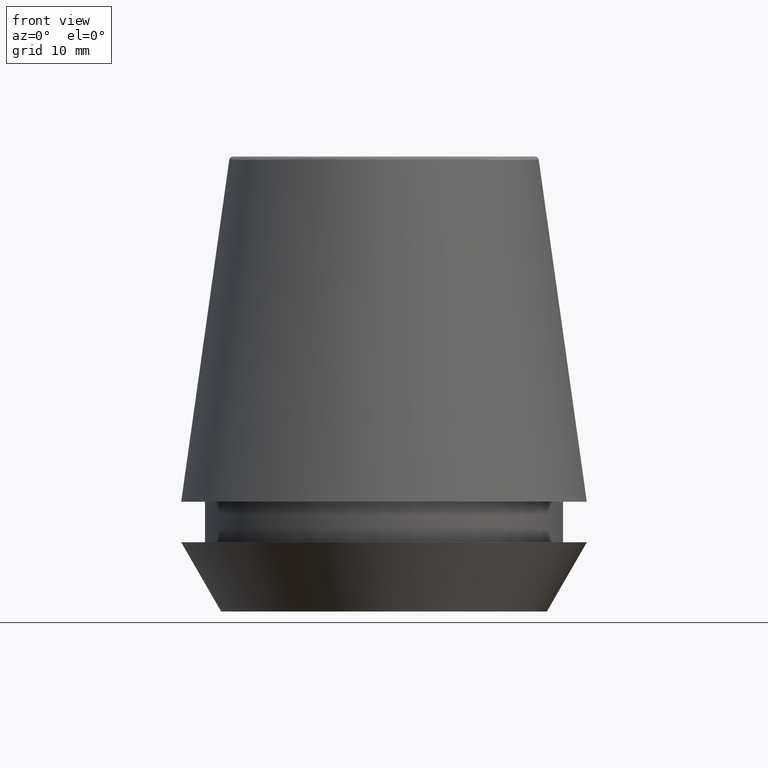
[diagram: clean part render]
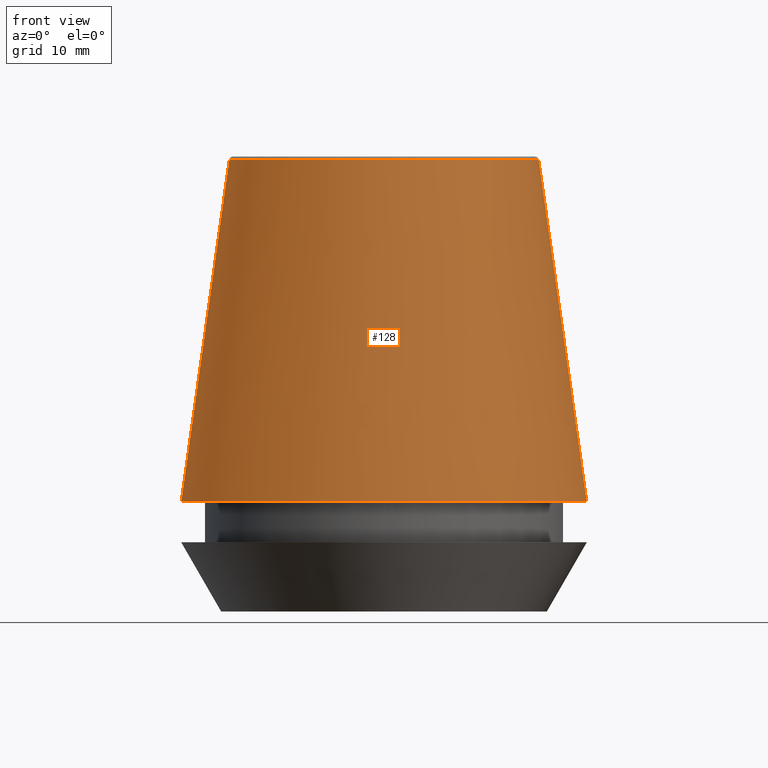
[diagram: same view with one face highlighted and labeled with its STEP entity id]
A machine part, front view. The second image highlights one B-rep face of the part: STEP entity #128.
In plain terms, the highlighted conical surface has half-angle 8 deg.
Its self-contained STEP definition (entity closure, byte-faithful):
#3 = AXIS2_PLACEMENT_3D ( 'NONE', #52, #127, #259 ) ;
#4 = DIRECTION ( 'NONE',  ( -0.0000000000000000000, -0.0000000000000000000, 1.000000000000000000 ) ) ;
#16 = ORIENTED_EDGE ( 'NONE', *, *, #297, .T. ) ;
#28 = EDGE_LOOP ( 'NONE', ( #56, #91, #226, #16 ) ) ;
#52 = CARTESIAN_POINT ( 'NONE',  ( 0.0000000000000000000, 0.0000000000000000000, 11.09999999999999800 ) ) ;
#56 = ORIENTED_EDGE ( 'NONE', *, *, #224, .F. ) ;
#68 = DIRECTION ( 'NONE',  ( 1.000000000000000000, 0.0000000000000000000, 0.0000000000000000000 ) ) ;
#89 = VERTEX_POINT ( 'NONE', #227 ) ;
#91 = ORIENTED_EDGE ( 'NONE', *, *, #380, .F. ) ;
#100 = CARTESIAN_POINT ( 'NONE',  ( 20.50032537154048700, 2.510565784773633700E-015, 11.09999999999999800 ) ) ;
#104 = CARTESIAN_POINT ( 'NONE',  ( 20.50032537154048700, 2.510565784773633700E-015, 11.09999999999999800 ) ) ;
#107 = AXIS2_PLACEMENT_3D ( 'NONE', #122, #348, #321 ) ;
#122 = CARTESIAN_POINT ( 'NONE',  ( 0.0000000000000000000, 0.0000000000000000000, 11.09999999999999800 ) ) ;
#127 = DIRECTION ( 'NONE',  ( -0.0000000000000000000, -0.0000000000000000000, 1.000000000000000000 ) ) ;
#128 = ADVANCED_FACE ( 'NONE', ( #244 ), #238, .T. ) ;
#142 = CIRCLE ( 'NONE', #211, 15.64384277279740400 ) ;
#159 = CARTESIAN_POINT ( 'NONE',  ( -20.50032537154048700, 0.0000000000000000000, 11.09999999999999800 ) ) ;
#167 = CARTESIAN_POINT ( 'NONE',  ( -20.50032537154048700, 0.0000000000000000000, 11.09999999999999800 ) ) ;
#181 = DIRECTION ( 'NONE',  ( 0.1391731009600587200, 1.704378926181473400E-017, -0.9902680687415712500 ) ) ;
#211 = AXIS2_PLACEMENT_3D ( 'NONE', #250, #4, #68 ) ;
#212 = VERTEX_POINT ( 'NONE', #159 ) ;
#224 = EDGE_CURVE ( 'NONE', #89, #319, #295, .T. ) ;
#226 = ORIENTED_EDGE ( 'NONE', *, *, #270, .T. ) ;
#227 = CARTESIAN_POINT ( 'NONE',  ( 15.64384277279740400, 2.213191991290356800E-015, 45.65566924038402900 ) ) ;
#238 = CONICAL_SURFACE ( 'NONE', #107, 20.50032537154048700, 0.1396263401595396200 ) ;
#244 = FACE_OUTER_BOUND ( 'NONE', #28, .T. ) ;
#249 = CIRCLE ( 'NONE', #3, 20.50032537154048700 ) ;
#250 = CARTESIAN_POINT ( 'NONE',  ( 0.0000000000000000000, 0.0000000000000000000, 45.65566924038402900 ) ) ;
#259 = DIRECTION ( 'NONE',  ( 1.000000000000000000, 0.0000000000000000000, 0.0000000000000000000 ) ) ;
#263 = VECTOR ( 'NONE', #379, 1000.000000000000000 ) ;
#270 = EDGE_CURVE ( 'NONE', #318, #212, #274, .T. ) ;
#274 = LINE ( 'NONE', #167, #263 ) ;
#289 = VECTOR ( 'NONE', #181, 1000.000000000000000 ) ;
#295 = LINE ( 'NONE', #100, #289 ) ;
#297 = EDGE_CURVE ( 'NONE', #212, #319, #249, .T. ) ;
#318 = VERTEX_POINT ( 'NONE', #354 ) ;
#319 = VERTEX_POINT ( 'NONE', #104 ) ;
#321 = DIRECTION ( 'NONE',  ( -1.000000000000000000, 0.0000000000000000000, 0.0000000000000000000 ) ) ;
#348 = DIRECTION ( 'NONE',  ( 0.0000000000000000000, 0.0000000000000000000, -1.000000000000000000 ) ) ;
#354 = CARTESIAN_POINT ( 'NONE',  ( -15.64384277279740400, 0.0000000000000000000, 45.65566924038402900 ) ) ;
#379 = DIRECTION ( 'NONE',  ( -0.1391731009600587200, 0.0000000000000000000, -0.9902680687415712500 ) ) ;
#380 = EDGE_CURVE ( 'NONE', #318, #89, #142, .T. ) ;